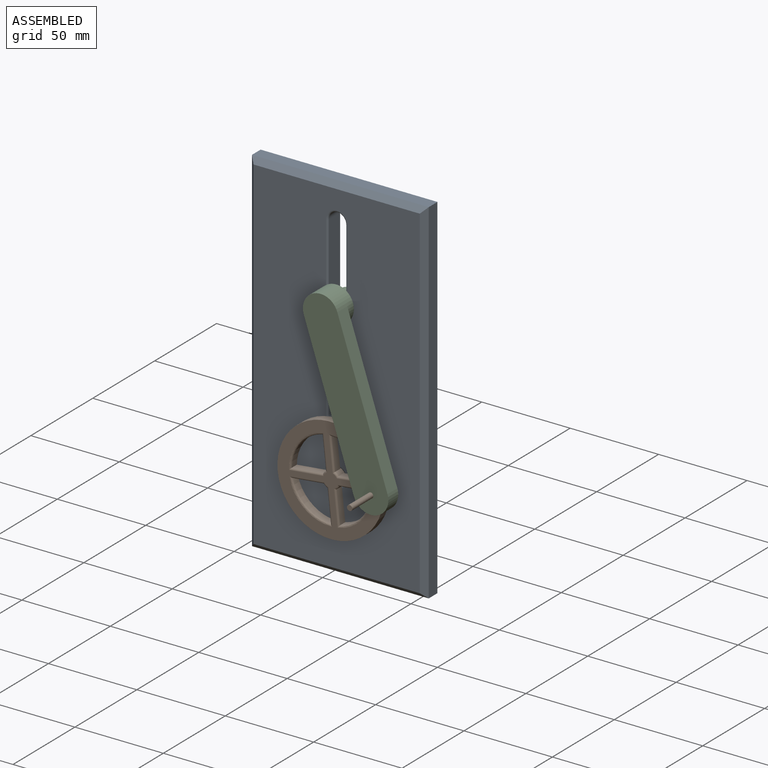
[diagram: assembled view]
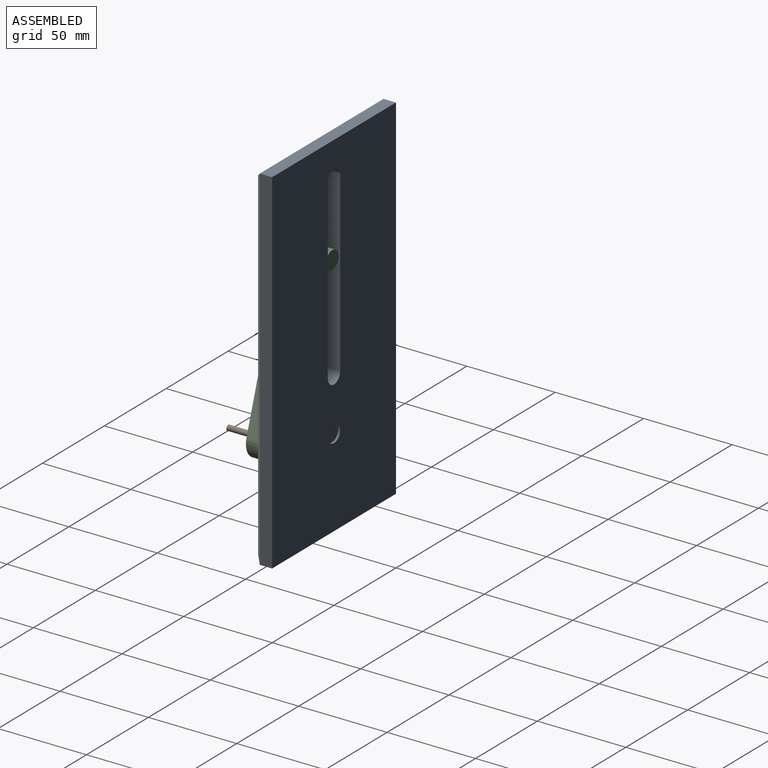
[diagram: assembled view, second angle]
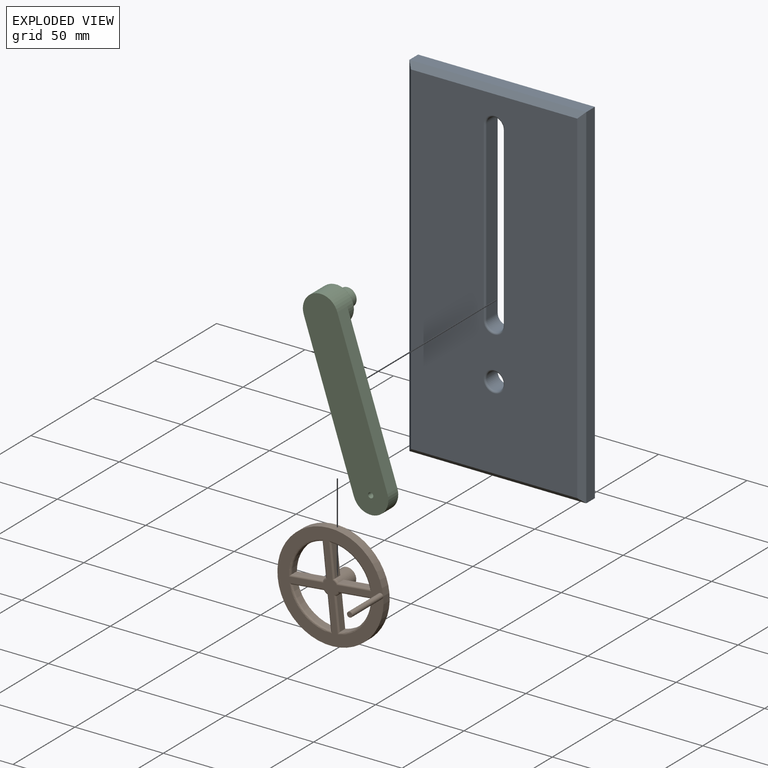
[diagram: exploded view]
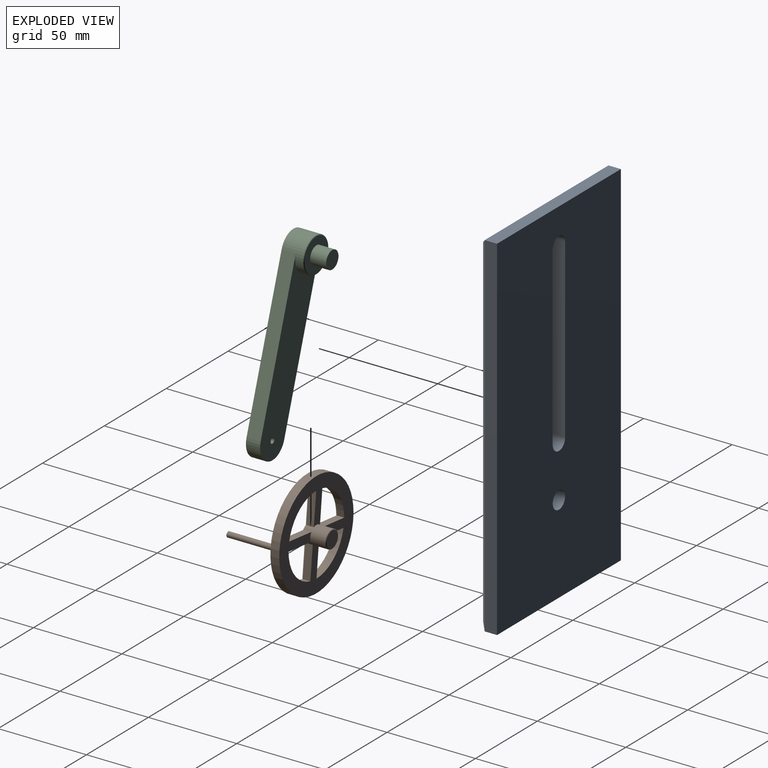
[diagram: exploded view, second angle]
ASSEMBLY  parts=3 mates=2
PART A: 20 faces, bbox 100x10x200 mm
  f0: cylinder r=5mm len=10mm, axis (0,1,0), area 141.4mm2, adj f1,f8,f10,f11
  f1: plane 100x9mm, normal (1,0,0), area 900mm2, adj f0,f2,f10,f12
  f2: cylinder r=5mm len=10mm, axis (0,1,0), area 141.4mm2, adj f1,f8,f10,f14
  f3: plane 200x7mm, normal (-1,0,0), area 1400mm2, adj f4,f7,f10,f17
  f4: plane 100x7mm, normal (0,0,-1), area 700mm2, adj f3,f5,f10,f19
  f5: plane 200x7mm, normal (1,0,0), area 1400mm2, adj f4,f7,f10,f18
  f6: cylinder r=5mm len=10mm, axis (0,1,0), area 282.7mm2, adj f10,f15
  f7: plane 100x7mm, normal (0,0,1), area 700mm2, adj f3,f5,f10,f16
  f8: plane 100x9mm, normal (-1,0,0), area 900mm2, adj f0,f2,f10,f13
  f9: plane 194x94mm, normal (0,-1,0), area 16809.8mm2, adj f11,f12,f13,f14,f15,f16,f17,f18
  f10: plane 200x100mm, normal (0,1,0), area 18842.9mm2, adj f0,f1,f2,f3,f4,f5,f6,f7
  f11: torus R=6mm, axis (0,-1,0), area 26.5mm2, adj f0,f9,f12,f13
  f12: cylinder r=1mm len=100mm, axis (0,0,-1), area 157.1mm2, adj f1,f9,f11,f14
  f13: cylinder r=1mm len=100mm, axis (0,0,1), area 157.1mm2, adj f8,f9,f11,f14
  f14: torus R=6mm, axis (0,-1,0), area 26.5mm2, adj f2,f9,f12,f13
  f15: torus R=6mm, axis (0,-1,0), area 52.9mm2, adj f6,f9
  f16: plane 100x3mm, normal (0,-0.71,0.71), area 411.5mm2, adj f7,f9,f17,f18
  f17: plane 200x3mm, normal (-0.71,-0.71,0), area 835.8mm2, adj f3,f9,f16,f19
  f18: plane 200x3mm, normal (0.71,-0.71,0), area 835.8mm2, adj f5,f9,f16,f19
  f19: plane 100x3mm, normal (0,-0.71,-0.71), area 411.5mm2, adj f4,f9,f17,f18
PART B: 36 faces, bbox 60x60x39 mm
  f0: plane 18.03x4mm, normal (0,-1,0), area 72.1mm2, adj f8,f12,f14,f20
  f1: plane 18.03x4mm, normal (1,0,0), area 72.1mm2, adj f8,f12,f14,f19
  f2: plane 18.03x4mm, normal (-1,0,0), area 72.1mm2, adj f8,f12,f15,f24
  f3: plane 18.03x4mm, normal (0,-1,0), area 72.1mm2, adj f8,f12,f15,f23
  f4: plane 18.03x4mm, normal (0,1,0), area 72.1mm2, adj f8,f12,f16,f28
  f5: plane 18.03x4mm, normal (-1,0,0), area 72.1mm2, adj f8,f12,f16,f27
  f6: plane 18.03x4mm, normal (1,0,0), area 72.1mm2, adj f8,f12,f17,f32
  f7: plane 18.03x4mm, normal (0,1,0), area 72.1mm2, adj f8,f12,f17,f31
  f8: cylinder r=5mm len=12.5mm, axis (0,0,1), area 308.9mm2, adj f0,f1,f2,f3,f4,f5,f6,f7
  f9: plane 9x9mm, normal (0,0,-1), area 63.6mm2, adj f13
  f10: cylinder r=30mm len=60mm, axis (0,0,-1), area 942.5mm2, adj f11,f12
  f11: plane 60x60mm, normal (0,0,1), area 1370.6mm2, adj f10,f18,f19,f20,f21,f22,f23,f24
  f12: plane 60x60mm, normal (0,0,-1), area 1590.4mm2, adj f0,f1,f2,f3,f4,f5,f6,f7
  f13: torus R=4.5mm, axis (0,0,1), area 23.8mm2, adj f8,f9
  f14: cylinder r=22.5mm len=19.86mm, axis (0,0,1), area 121.3mm2, adj f0,f1,f12,f18
  f15: cylinder r=22.5mm len=19.86mm, axis (0,0,1), area 121.3mm2, adj f2,f3,f12,f22
  f16: cylinder r=22.5mm len=19.86mm, axis (0,0,1), area 121.3mm2, adj f4,f5,f12,f26
  f17: cylinder r=22.5mm len=19.86mm, axis (0,0,1), area 121.3mm2, adj f6,f7,f12,f30
  f18: torus R=23.5mm, axis (0,0,1), area 49.7mm2, adj f11,f14,f19,f20
  f19: cylinder r=1mm len=19.74mm, axis (0,1,0), area 29.3mm2, adj f1,f11,f18,f21
  f20: cylinder r=1mm len=19.74mm, axis (1,0,0), area 29.3mm2, adj f0,f11,f18,f21
  f21: torus R=4mm, axis (0,0,1), area 4.5mm2, adj f8,f11,f19,f20
  f22: torus R=23.5mm, axis (0,0,1), area 49.7mm2, adj f11,f15,f23,f24
  f23: cylinder r=1mm len=19.74mm, axis (1,0,0), area 29.3mm2, adj f3,f11,f22,f25
  f24: cylinder r=1mm len=19.74mm, axis (0,-1,0), area 29.3mm2, adj f2,f11,f22,f25
  f25: torus R=4mm, axis (0,0,1), area 4.5mm2, adj f8,f11,f23,f24
  f26: torus R=23.5mm, axis (0,0,1), area 49.7mm2, adj f11,f16,f27,f28
  f27: cylinder r=1mm len=19.74mm, axis (0,-1,0), area 29.3mm2, adj f5,f11,f26,f29
  f28: cylinder r=1mm len=19.74mm, axis (-1,0,0), area 29.3mm2, adj f4,f11,f26,f29
  f29: torus R=4mm, axis (0,0,1), area 4.5mm2, adj f8,f11,f27,f28
  f30: torus R=23.5mm, axis (0,0,1), area 49.7mm2, adj f11,f17,f31,f32
  f31: cylinder r=1mm len=19.74mm, axis (-1,0,0), area 29.3mm2, adj f7,f11,f30,f33
  f32: cylinder r=1mm len=19.74mm, axis (0,1,0), area 29.3mm2, adj f6,f11,f30,f33
  f33: torus R=4mm, axis (0,0,1), area 4.5mm2, adj f8,f11,f31,f32
  f34: cylinder r=1.5mm len=25mm, axis (0,0,-1), area 235.6mm2, adj f11,f35
  f35: plane 3x3mm, normal (0,0,1), area 7.1mm2, adj f34
PART C: 11 faces, bbox 21.6x110.8x22 mm
  f0: plane 100x20mm, normal (0,0,-1), area 1792.9mm2, adj f1,f2,f3,f4,f5
  f1: cylinder r=10mm len=20mm, axis (0,0,-1), area 251.3mm2, adj f0,f2,f5,f6
  f2: plane 90x8mm, normal (1,0,0), area 720mm2, adj f0,f1,f3,f6
  f3: cylinder r=10mm len=20mm, axis (0,0,-1), area 534.1mm2, adj f0,f2,f5,f6,f10
  f4: cylinder r=1.5mm len=8mm, axis (0,0,-1), area 75.4mm2, adj f0,f6
  f5: plane 90x8mm, normal (-1,0,0), area 720mm2, adj f0,f1,f3,f6
  f6: plane 110x20mm, normal (0,0,1), area 2107.1mm2, adj f1,f2,f3,f4,f5
  f7: plane 19x19mm, normal (0,0,-1), area 205mm2, adj f9,f10
  f8: plane 10x10mm, normal (0,0,-1), area 78.5mm2, adj f9
  f9: cylinder r=5mm len=10mm, axis (0,0,1), area 282.7mm2, adj f7,f8
  f10: torus R=9.5mm, axis (0,0,1), area 48.5mm2, adj f3,f7
PLACE A at identity fixed
PLACE B rot(axis=(0.54,-0.6,0.6),123.6deg) t=(50,-10,50)mm
PLACE C rot(axis=(0.97,-0.16,0.16),91.5deg) t=(78.34,-15,53.01)mm
MATE revolute C.f4 <-> B.f34  axis (0,1,0) through (78.34,-15,53.01)mm
MATE revolute A.f6 <-> B.f8  axis (0,-1,0) through (50,-10,50)mm
